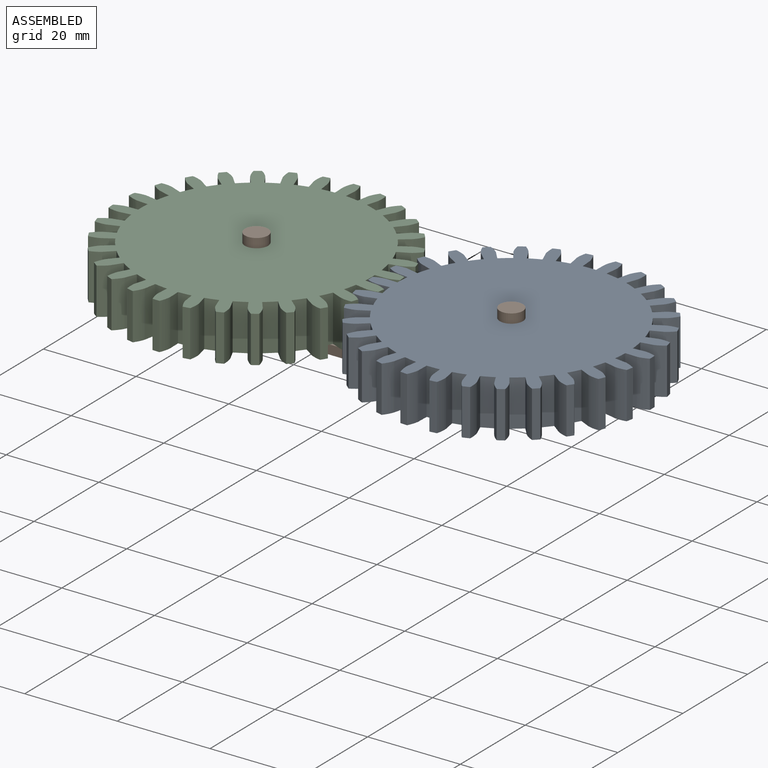
[diagram: assembled view]
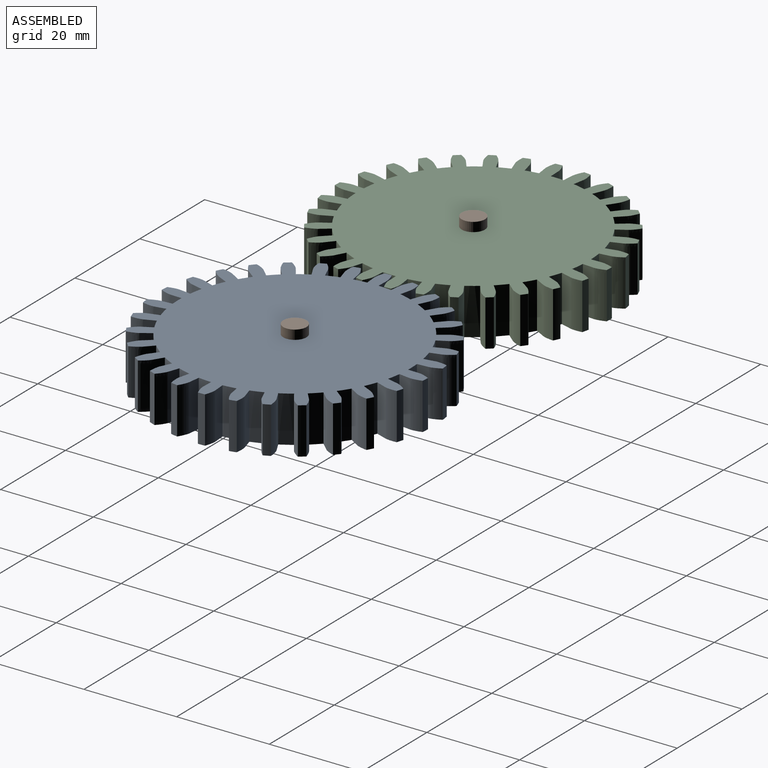
[diagram: assembled view, second angle]
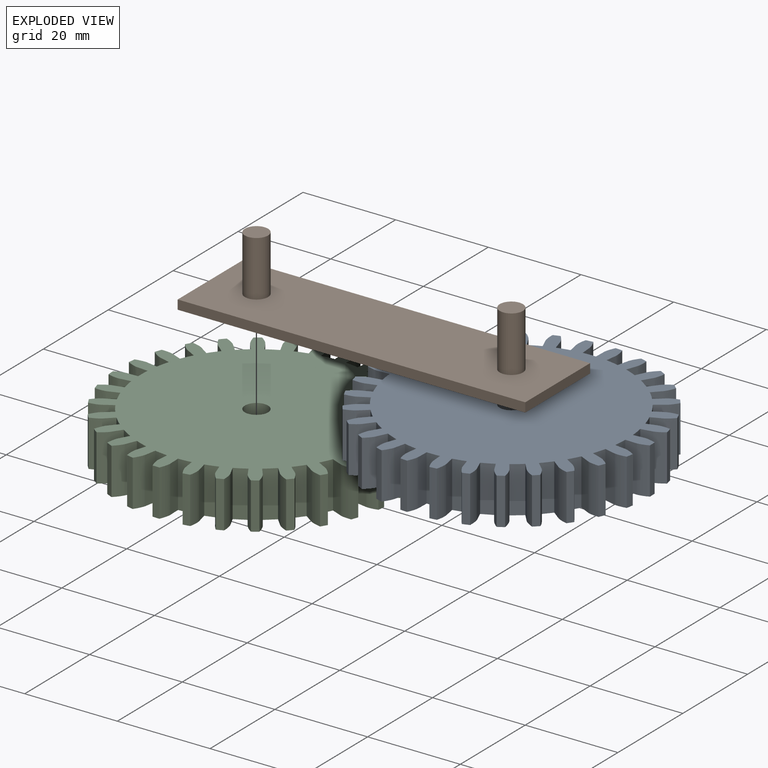
[diagram: exploded view]
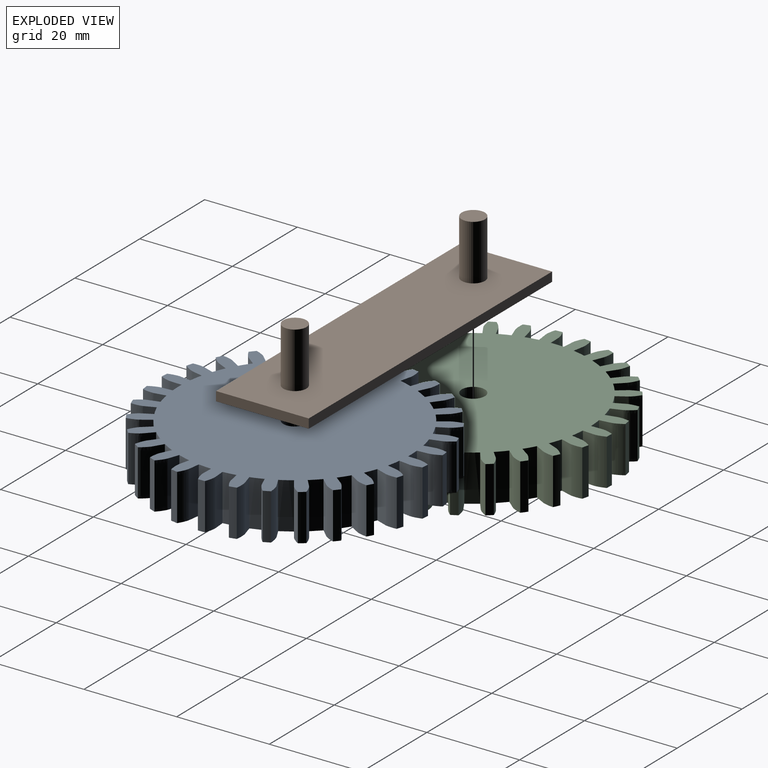
[diagram: exploded view, second angle]
ASSEMBLY  parts=3 mates=2
PART A: 183 faces, bbox 59.6x59.8x10 mm
  f0: cylinder r=25mm len=10mm, axis (0,0,-1), area 28.2mm2, adj f31,f32,f177,f180
  f1: cylinder r=25mm len=10mm, axis (0,0,-1), area 28.2mm2, adj f31,f32,f172,f175
  f2: cylinder r=25mm len=10mm, axis (0,0,-1), area 28.2mm2, adj f31,f32,f167,f170
  f3: cylinder r=25mm len=10mm, axis (0,0,-1), area 28.2mm2, adj f31,f32,f162,f165
  f4: cylinder r=25mm len=10mm, axis (0,0,-1), area 28.2mm2, adj f31,f32,f157,f160
  f5: cylinder r=25mm len=10mm, axis (0,0,-1), area 28.2mm2, adj f31,f32,f152,f155
  f6: cylinder r=25mm len=10mm, axis (0,0,-1), area 28.2mm2, adj f31,f32,f147,f150
  f7: cylinder r=25mm len=10mm, axis (0,0,-1), area 28.2mm2, adj f31,f32,f142,f145
  f8: cylinder r=25mm len=10mm, axis (0,0,-1), area 28.2mm2, adj f31,f32,f137,f140
  f9: cylinder r=25mm len=10mm, axis (0,0,-1), area 28.2mm2, adj f31,f32,f132,f135
  f10: cylinder r=25mm len=10mm, axis (0,0,-1), area 28.2mm2, adj f31,f32,f127,f130
  f11: cylinder r=25mm len=10mm, axis (0,0,-1), area 28.2mm2, adj f31,f32,f122,f125
  f12: cylinder r=25mm len=10mm, axis (0,0,-1), area 28.2mm2, adj f31,f32,f117,f120
  f13: cylinder r=25mm len=10mm, axis (0,0,-1), area 28.2mm2, adj f31,f32,f112,f115
  f14: cylinder r=25mm len=10mm, axis (0,0,-1), area 28.2mm2, adj f31,f32,f107,f110
  f15: cylinder r=25mm len=10mm, axis (0,0,-1), area 28.2mm2, adj f31,f32,f102,f105
  f16: cylinder r=25mm len=10mm, axis (0,0,-1), area 28.2mm2, adj f31,f32,f97,f100
  f17: cylinder r=25mm len=10mm, axis (0,0,-1), area 28.2mm2, adj f31,f32,f92,f95
  f18: cylinder r=25mm len=10mm, axis (0,0,-1), area 28.2mm2, adj f31,f32,f87,f90
  f19: cylinder r=25mm len=10mm, axis (0,0,-1), area 28.2mm2, adj f31,f32,f82,f85
  f20: cylinder r=25mm len=10mm, axis (0,0,-1), area 28.2mm2, adj f31,f32,f77,f80
  f21: cylinder r=25mm len=10mm, axis (0,0,-1), area 28.2mm2, adj f31,f32,f72,f75
  f22: cylinder r=25mm len=10mm, axis (0,0,-1), area 28.2mm2, adj f31,f32,f67,f70
  f23: cylinder r=25mm len=10mm, axis (0,0,-1), area 28.2mm2, adj f31,f32,f62,f65
  f24: cylinder r=25mm len=10mm, axis (0,0,-1), area 28.2mm2, adj f31,f32,f57,f60
  f25: cylinder r=25mm len=10mm, axis (0,0,-1), area 28.2mm2, adj f31,f32,f52,f55
  f26: cylinder r=25mm len=10mm, axis (0,0,-1), area 28.2mm2, adj f31,f32,f47,f50
  f27: cylinder r=25mm len=10mm, axis (0,0,-1), area 28.2mm2, adj f31,f32,f42,f45
  f28: cylinder r=25mm len=10mm, axis (0,0,-1), area 28.2mm2, adj f31,f32,f37,f40
  f29: cylinder r=25mm len=10mm, axis (0,0,-1), area 28.2mm2, adj f31,f32,f35,f182
  f30: cylinder r=2.5mm len=10mm, axis (0,0,-1), area 157.1mm2, adj f31,f32
  f31: plane 59.82x59.63mm, normal (0,0,1), area 2296.7mm2, adj f0,f1,f2,f3,f4,f5,f6,f7
  f32: plane 59.82x59.63mm, normal (0,0,-1), area 2296.7mm2, adj f0,f1,f2,f3,f4,f5,f6,f7
  f33: cylinder r=29.9mm len=10mm, axis (0,0,-1), area 15mm2, adj f31,f32,f34,f36
  f34: extruded ~10x2.42mm, area 25mm2, adj f31,f32,f33,f35
  f35: plane 10x2.51mm, normal (1,-0.05,0), area 25.1mm2, adj f29,f31,f32,f34
  f36: extruded ~10x2.42mm, area 25mm2, adj f31,f32,f33,f37
  f37: plane 10x2.51mm, normal (-1,-0.05,0), area 25.1mm2, adj f28,f31,f32,f36
  f38: cylinder r=29.9mm len=10mm, axis (0,0,-1), area 15mm2, adj f31,f32,f39,f41
  f39: extruded ~10x2.24mm, area 25mm2, adj f31,f32,f38,f40
  f40: plane 10x2.48mm, normal (0.99,0.16,0), area 25.1mm2, adj f28,f31,f32,f39
  f41: extruded ~10x2.49mm, area 25mm2, adj f31,f32,f38,f42
  f42: plane 10.01x2.43mm, normal (-0.97,-0.26,0), area 25.1mm2, adj f27,f31,f32,f41
  f43: cylinder r=29.9mm len=10mm, axis (0,0,-1), area 15mm2, adj f31,f32,f44,f46
  f44: extruded ~10x1.97mm, area 25mm2, adj f31,f32,f43,f45
  f45: plane 10x2.34mm, normal (0.93,0.36,0), area 25.1mm2, adj f27,f31,f32,f44
  f46: extruded ~10x2.45mm, area 25mm2, adj f31,f32,f43,f47
  f47: plane 10.01x2.24mm, normal (-0.89,-0.45,0), area 25.1mm2, adj f26,f31,f32,f46
  f48: cylinder r=29.9mm len=10mm, axis (0,0,-1), area 15mm2, adj f31,f32,f49,f51
  f49: extruded ~10x1.9mm, area 25mm2, adj f31,f32,f48,f50
  f50: plane 10x2.1mm, normal (0.84,0.54,0), area 25.1mm2, adj f26,f31,f32,f49
  f51: extruded ~10x2.3mm, area 25mm2, adj f31,f32,f48,f52
  f52: plane 10x1.95mm, normal (-0.78,-0.63,0), area 25.1mm2, adj f25,f31,f32,f51
  f53: cylinder r=29.9mm len=10mm, axis (0,0,-1), area 15mm2, adj f31,f32,f54,f56
  f54: extruded ~10x2.19mm, area 25mm2, adj f31,f32,f53,f55
  f55: plane 10x1.77mm, normal (0.71,0.71,0), area 25.1mm2, adj f25,f31,f32,f54
  f56: extruded ~10x2.05mm, area 25mm2, adj f31,f32,f53,f57
  f57: plane 10x1.95mm, normal (-0.63,-0.78,0), area 25.1mm2, adj f24,f31,f32,f56
  f58: cylinder r=29.9mm len=10mm, axis (0,0,-1), area 15mm2, adj f31,f32,f59,f61
  f59: extruded ~10x2.39mm, area 25mm2, adj f31,f32,f58,f60
  f60: plane 10x2.1mm, normal (0.54,0.84,0), area 25.1mm2, adj f24,f31,f32,f59
  f61: extruded ~10x1.8mm, area 25mm2, adj f31,f32,f58,f62
  f62: plane 10x2.24mm, normal (-0.45,-0.89,0), area 25.1mm2, adj f23,f31,f32,f61
  f63: cylinder r=29.9mm len=10mm, axis (0,0,-1), area 15mm2, adj f31,f32,f64,f66
  f64: extruded ~10x2.48mm, area 25mm2, adj f31,f32,f63,f65
  f65: plane 10.01x2.35mm, normal (0.36,0.93,0), area 25.1mm2, adj f23,f31,f32,f64
  f66: extruded ~10x2.11mm, area 25mm2, adj f31,f32,f63,f67
  f67: plane 10x2.42mm, normal (-0.26,-0.97,0), area 25.1mm2, adj f22,f31,f32,f66
  f68: cylinder r=29.9mm len=10mm, axis (0,0,-1), area 15mm2, adj f31,f32,f69,f71
  f69: extruded ~10x2.46mm, area 25mm2, adj f31,f32,f68,f70
  f70: plane 10x2.48mm, normal (0.16,0.99,0), area 25.1mm2, adj f22,f31,f32,f69
  f71: extruded ~10x2.34mm, area 25mm2, adj f31,f32,f68,f72
  f72: plane 10x2.51mm, normal (-0.05,-1,0), area 25.1mm2, adj f21,f31,f32,f71
  f73: cylinder r=29.9mm len=10mm, axis (0,0,-1), area 15mm2, adj f31,f32,f74,f76
  f74: extruded ~10x2.34mm, area 25mm2, adj f31,f32,f73,f75
  f75: plane 10x2.51mm, normal (-0.05,1,0), area 25.1mm2, adj f21,f31,f32,f74
  f76: extruded ~10x2.46mm, area 25mm2, adj f31,f32,f73,f77
  f77: plane 10x2.48mm, normal (0.16,-0.99,0), area 25.1mm2, adj f20,f31,f32,f76
  f78: cylinder r=29.9mm len=10mm, axis (0,0,-1), area 15mm2, adj f31,f32,f79,f81
  f79: extruded ~10x2.11mm, area 25mm2, adj f31,f32,f78,f80
  f80: plane 10x2.42mm, normal (-0.26,0.97,0), area 25.1mm2, adj f20,f31,f32,f79
  f81: extruded ~10x2.48mm, area 25mm2, adj f31,f32,f78,f82
  f82: plane 10.01x2.35mm, normal (0.36,-0.93,0), area 25.1mm2, adj f19,f31,f32,f81
  f83: cylinder r=29.9mm len=10mm, axis (0,0,-1), area 15mm2, adj f31,f32,f84,f86
  f84: extruded ~10x1.8mm, area 25mm2, adj f31,f32,f83,f85
  f85: plane 10x2.24mm, normal (-0.45,0.89,0), area 25.1mm2, adj f19,f31,f32,f84
  f86: extruded ~10x2.39mm, area 25mm2, adj f31,f32,f83,f87
  f87: plane 10x2.1mm, normal (0.54,-0.84,0), area 25.1mm2, adj f18,f31,f32,f86
  f88: cylinder r=29.9mm len=10mm, axis (0,0,-1), area 15mm2, adj f31,f32,f89,f91
  f89: extruded ~10x2.05mm, area 25mm2, adj f31,f32,f88,f90
  f90: plane 10x1.95mm, normal (-0.63,0.78,0), area 25.1mm2, adj f18,f31,f32,f89
  f91: extruded ~10x2.19mm, area 25mm2, adj f31,f32,f88,f92
  f92: plane 10x1.77mm, normal (0.71,-0.71,0), area 25.1mm2, adj f17,f31,f32,f91
  f93: cylinder r=29.9mm len=10mm, axis (0,0,-1), area 15mm2, adj f31,f32,f94,f96
  f94: extruded ~10x2.3mm, area 25mm2, adj f31,f32,f93,f95
  f95: plane 10x1.95mm, normal (-0.78,0.63,0), area 25.1mm2, adj f17,f31,f32,f94
  f96: extruded ~10x1.9mm, area 25mm2, adj f31,f32,f93,f97
  f97: plane 10x2.1mm, normal (0.84,-0.54,0), area 25.1mm2, adj f16,f31,f32,f96
  f98: cylinder r=29.9mm len=10mm, axis (0,0,-1), area 15mm2, adj f31,f32,f99,f101
  f99: extruded ~10x2.45mm, area 25mm2, adj f31,f32,f98,f100
  f100: plane 10.01x2.24mm, normal (-0.89,0.45,0), area 25.1mm2, adj f16,f31,f32,f99
  f101: extruded ~10x1.97mm, area 25mm2, adj f31,f32,f98,f102
  f102: plane 10x2.34mm, normal (0.93,-0.36,0), area 25.1mm2, adj f15,f31,f32,f101
  f103: cylinder r=29.9mm len=10mm, axis (0,0,-1), area 15mm2, adj f31,f32,f104,f106
  f104: extruded ~10x2.49mm, area 25mm2, adj f31,f32,f103,f105
  f105: plane 10.01x2.43mm, normal (-0.97,0.26,0), area 25.1mm2, adj f15,f31,f32,f104
  f106: extruded ~10x2.24mm, area 25mm2, adj f31,f32,f103,f107
  f107: plane 10x2.48mm, normal (0.99,-0.16,0), area 25.1mm2, adj f14,f31,f32,f106
  f108: cylinder r=29.9mm len=10mm, axis (0,0,-1), area 15mm2, adj f31,f32,f109,f111
  f109: extruded ~10x2.42mm, area 25mm2, adj f31,f32,f108,f110
  f110: plane 10x2.51mm, normal (-1,0.05,0), area 25.1mm2, adj f14,f31,f32,f109
  f111: extruded ~10x2.42mm, area 25mm2, adj f31,f32,f108,f112
  f112: plane 10x2.51mm, normal (1,0.05,0), area 25.1mm2, adj f13,f31,f32,f111
  f113: cylinder r=29.9mm len=10mm, axis (0,0,-1), area 15mm2, adj f31,f32,f114,f116
  f114: extruded ~10x2.24mm, area 25mm2, adj f31,f32,f113,f115
  f115: plane 10x2.48mm, normal (-0.99,-0.16,0), area 25.1mm2, adj f13,f31,f32,f114
  f116: extruded ~10x2.49mm, area 25mm2, adj f31,f32,f113,f117
  f117: plane 10.01x2.43mm, normal (0.97,0.26,0), area 25.1mm2, adj f12,f31,f32,f116
  f118: cylinder r=29.9mm len=10mm, axis (0,0,-1), area 15mm2, adj f31,f32,f119,f121
  f119: extruded ~10x1.97mm, area 25mm2, adj f31,f32,f118,f120
  f120: plane 10x2.34mm, normal (-0.93,-0.36,0), area 25.1mm2, adj f12,f31,f32,f119
  f121: extruded ~10x2.45mm, area 25mm2, adj f31,f32,f118,f122
  f122: plane 10.01x2.24mm, normal (0.89,0.45,0), area 25.1mm2, adj f11,f31,f32,f121
  f123: cylinder r=29.9mm len=10mm, axis (0,0,-1), area 15mm2, adj f31,f32,f124,f126
  f124: extruded ~10x1.9mm, area 25mm2, adj f31,f32,f123,f125
  f125: plane 10x2.1mm, normal (-0.84,-0.54,0), area 25.1mm2, adj f11,f31,f32,f124
  f126: extruded ~10x2.3mm, area 25mm2, adj f31,f32,f123,f127
  f127: plane 10x1.95mm, normal (0.78,0.63,0), area 25.1mm2, adj f10,f31,f32,f126
  f128: cylinder r=29.9mm len=10mm, axis (0,0,-1), area 15mm2, adj f31,f32,f129,f131
  f129: extruded ~10x2.19mm, area 25mm2, adj f31,f32,f128,f130
  f130: plane 10x1.77mm, normal (-0.71,-0.71,0), area 25.1mm2, adj f10,f31,f32,f129
  f131: extruded ~10x2.05mm, area 25mm2, adj f31,f32,f128,f132
  f132: plane 10x1.95mm, normal (0.63,0.78,0), area 25.1mm2, adj f9,f31,f32,f131
  f133: cylinder r=29.9mm len=10mm, axis (0,0,-1), area 15mm2, adj f31,f32,f134,f136
  f134: extruded ~10x2.39mm, area 25mm2, adj f31,f32,f133,f135
  f135: plane 10x2.1mm, normal (-0.54,-0.84,0), area 25.1mm2, adj f9,f31,f32,f134
  f136: extruded ~10x1.8mm, area 25mm2, adj f31,f32,f133,f137
  f137: plane 10x2.24mm, normal (0.45,0.89,0), area 25.1mm2, adj f8,f31,f32,f136
  f138: cylinder r=29.9mm len=10mm, axis (0,0,-1), area 15mm2, adj f31,f32,f139,f141
  f139: extruded ~10x2.48mm, area 25mm2, adj f31,f32,f138,f140
  f140: plane 10.01x2.35mm, normal (-0.36,-0.93,0), area 25.1mm2, adj f8,f31,f32,f139
  f141: extruded ~10x2.11mm, area 25mm2, adj f31,f32,f138,f142
  f142: plane 10x2.42mm, normal (0.26,0.97,0), area 25.1mm2, adj f7,f31,f32,f141
  f143: cylinder r=29.9mm len=10mm, axis (0,0,-1), area 15mm2, adj f31,f32,f144,f146
  f144: extruded ~10x2.46mm, area 25mm2, adj f31,f32,f143,f145
  f145: plane 10x2.48mm, normal (-0.16,-0.99,0), area 25.1mm2, adj f7,f31,f32,f144
  f146: extruded ~10x2.34mm, area 25mm2, adj f31,f32,f143,f147
  f147: plane 10x2.51mm, normal (0.05,1,0), area 25.1mm2, adj f6,f31,f32,f146
  f148: cylinder r=29.9mm len=10mm, axis (0,0,-1), area 15mm2, adj f31,f32,f149,f151
  f149: extruded ~10x2.34mm, area 25mm2, adj f31,f32,f148,f150
  f150: plane 10x2.51mm, normal (0.05,-1,0), area 25.1mm2, adj f6,f31,f32,f149
  f151: extruded ~10x2.46mm, area 25mm2, adj f31,f32,f148,f152
  f152: plane 10x2.48mm, normal (-0.16,0.99,0), area 25.1mm2, adj f5,f31,f32,f151
  f153: cylinder r=29.9mm len=10mm, axis (0,0,-1), area 15mm2, adj f31,f32,f154,f156
  f154: extruded ~10x2.11mm, area 25mm2, adj f31,f32,f153,f155
  f155: plane 10x2.42mm, normal (0.26,-0.97,0), area 25.1mm2, adj f5,f31,f32,f154
  f156: extruded ~10x2.48mm, area 25mm2, adj f31,f32,f153,f157
  f157: plane 10.01x2.35mm, normal (-0.36,0.93,0), area 25.1mm2, adj f4,f31,f32,f156
  f158: cylinder r=29.9mm len=10mm, axis (0,0,-1), area 15mm2, adj f31,f32,f159,f161
  f159: extruded ~10x1.8mm, area 25mm2, adj f31,f32,f158,f160
  f160: plane 10x2.24mm, normal (0.45,-0.89,0), area 25.1mm2, adj f4,f31,f32,f159
  f161: extruded ~10x2.39mm, area 25mm2, adj f31,f32,f158,f162
  f162: plane 10x2.1mm, normal (-0.54,0.84,0), area 25.1mm2, adj f3,f31,f32,f161
  f163: cylinder r=29.9mm len=10mm, axis (0,0,-1), area 15mm2, adj f31,f32,f164,f166
  f164: extruded ~10x2.05mm, area 25mm2, adj f31,f32,f163,f165
  f165: plane 10x1.95mm, normal (0.63,-0.78,0), area 25.1mm2, adj f3,f31,f32,f164
  f166: extruded ~10x2.19mm, area 25mm2, adj f31,f32,f163,f167
  f167: plane 10x1.77mm, normal (-0.71,0.71,0), area 25.1mm2, adj f2,f31,f32,f166
  f168: cylinder r=29.9mm len=10mm, axis (0,0,-1), area 15mm2, adj f31,f32,f169,f171
  f169: extruded ~10x2.3mm, area 25mm2, adj f31,f32,f168,f170
  f170: plane 10x1.95mm, normal (0.78,-0.63,0), area 25.1mm2, adj f2,f31,f32,f169
  f171: extruded ~10x1.9mm, area 25mm2, adj f31,f32,f168,f172
  f172: plane 10x2.1mm, normal (-0.84,0.54,0), area 25.1mm2, adj f1,f31,f32,f171
  f173: cylinder r=29.9mm len=10mm, axis (0,0,-1), area 15mm2, adj f31,f32,f174,f176
  f174: extruded ~10x2.45mm, area 25mm2, adj f31,f32,f173,f175
  f175: plane 10.01x2.24mm, normal (0.89,-0.45,0), area 25.1mm2, adj f1,f31,f32,f174
  f176: extruded ~10x1.97mm, area 25mm2, adj f31,f32,f173,f177
  f177: plane 10x2.34mm, normal (-0.93,0.36,0), area 25.1mm2, adj f0,f31,f32,f176
  f178: cylinder r=29.9mm len=10mm, axis (0,0,-1), area 15mm2, adj f31,f32,f179,f181
  f179: extruded ~10x2.49mm, area 25mm2, adj f31,f32,f178,f180
  f180: plane 10.01x2.43mm, normal (0.97,-0.26,0), area 25.1mm2, adj f0,f31,f32,f179
  f181: extruded ~10x2.24mm, area 25mm2, adj f31,f32,f178,f182
  f182: plane 10x2.48mm, normal (-0.99,0.16,0), area 25.1mm2, adj f29,f31,f32,f181
PART B: 10 faces, bbox 75x20x14 mm
  f0: plane 75x2mm, normal (0,-1,0), area 150mm2, adj f1,f3,f4,f5
  f1: plane 20x2mm, normal (1,0,0), area 40mm2, adj f0,f2,f4,f5
  f2: plane 75x2mm, normal (0,1,0), area 150mm2, adj f1,f3,f4,f5
  f3: plane 20x2mm, normal (-1,0,0), area 40mm2, adj f0,f2,f4,f5
  f4: plane 75x20mm, normal (0,0,-1), area 1500mm2, adj f0,f1,f2,f3
  f5: plane 75x20mm, normal (0,0,1), area 1460.7mm2, adj f0,f1,f2,f3,f6,f8
  f6: cylinder r=2.5mm len=12mm, axis (0,0,-1), area 188.5mm2, adj f5,f7
  f7: plane 5x5mm, normal (0,0,1), area 19.6mm2, adj f6
  f8: cylinder r=2.5mm len=12mm, axis (0,0,-1), area 188.5mm2, adj f5,f9
  f9: plane 5x5mm, normal (0,0,1), area 19.6mm2, adj f8
PART C: same geometry as A
PLACE A rot(axis=(0,0,-1),160.5deg) t=(55,0,0)mm
PLACE B at identity fixed
PLACE C rot(axis=(0,0,-1),109.5deg) t=(0,0,0)mm
MATE revolute B.f6 <-> C.f0  axis (0,0,1) through (0,0,0)mm
MATE revolute A.f0 <-> B.f8  axis (0,0,-1) through (55,0,0)mm
